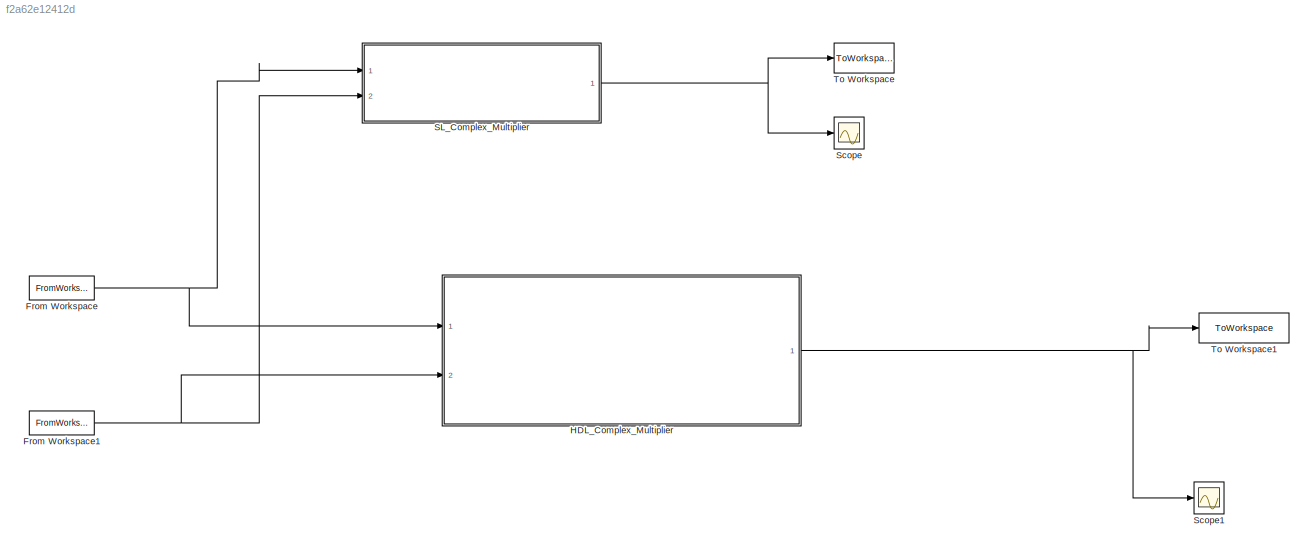
MODEL slx_f2a62e12412d
KIND model
CONFIG AbsTol = auto
CONFIG EnableMultiTasking = off
CONFIG FixedStep = auto
CONFIG MaxStep = auto
CONFIG MinStep = auto
CONFIG RelTol = 1e-3
CONFIG SampleTimeConstraint = Unconstrained
CONFIG SolverName = FixedStepDiscrete
CONFIG StartTime = 0.0
CONFIG StopTime = simulation_stop_time
BLOCK [FromWorkspace] From Workspace
  Interpolate = off
  OutputAfterFinalValue = Setting to zero
  SampleTime = sample_time
  VariableName = data1
BLOCK [FromWorkspace] From Workspace1
  Interpolate = off
  OutputAfterFinalValue = Setting to zero
  SampleTime = sample_time
  VariableName = data2
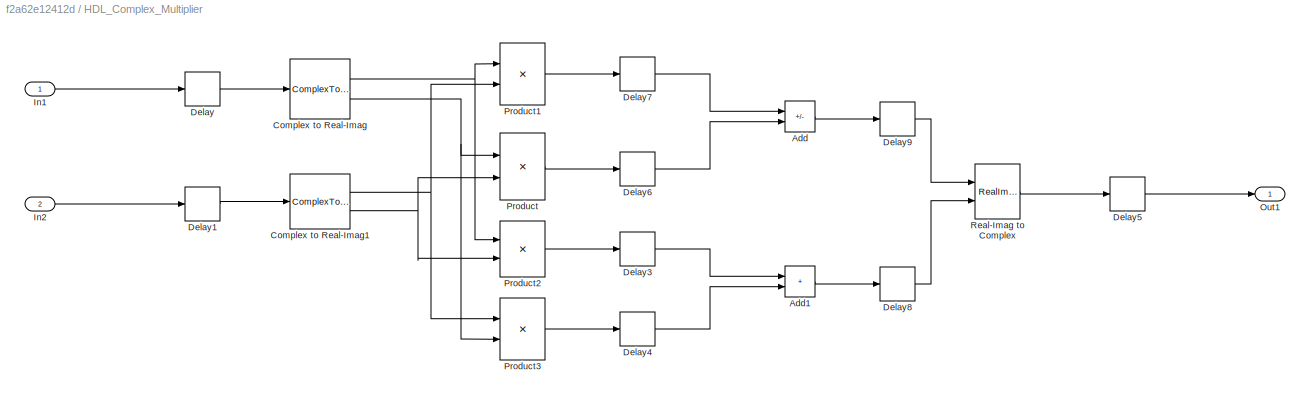
BLOCK [SubSystem] HDL_Complex_Multiplier
  Ports = [2, 1]
  RequestExecContextInheritance = off
BLOCK [Sum] HDL_Complex_Multiplier/Add
  IconShape = rectangular
  Inputs = +-
  Ports = [2, 1]
BLOCK [Sum] HDL_Complex_Multiplier/Add1
  IconShape = rectangular
  Ports = [2, 1]
BLOCK [ComplexToRealImag] HDL_Complex_Multiplier/Complex to Real-Imag
  Ports = [1, 2]
BLOCK [ComplexToRealImag] HDL_Complex_Multiplier/Complex to Real-Imag1
  Ports = [1, 2]
BLOCK [Delay] HDL_Complex_Multiplier/Delay
  DelayLength = 1
  InitialCondition = 0
  InputPortMap = u0
  Ports = [1, 1]
BLOCK [Delay] HDL_Complex_Multiplier/Delay1
  DelayLength = 1
  InitialCondition = 0
  InputPortMap = u0
  Ports = [1, 1]
BLOCK [Delay] HDL_Complex_Multiplier/Delay3
  DelayLength = 1
  InitialCondition = 0
  InputPortMap = u0
  Ports = [1, 1]
BLOCK [Delay] HDL_Complex_Multiplier/Delay4
  DelayLength = 1
  InitialCondition = 0
  InputPortMap = u0
  Ports = [1, 1]
BLOCK [Delay] HDL_Complex_Multiplier/Delay5
  DelayLength = 1
  InitialCondition = 0
  InputPortMap = u0
  Ports = [1, 1]
BLOCK [Delay] HDL_Complex_Multiplier/Delay6
  DelayLength = 1
  InitialCondition = 0
  InputPortMap = u0
  Ports = [1, 1]
BLOCK [Delay] HDL_Complex_Multiplier/Delay7
  DelayLength = 1
  InitialCondition = 0
  InputPortMap = u0
  Ports = [1, 1]
BLOCK [Delay] HDL_Complex_Multiplier/Delay8
  DelayLength = 1
  InitialCondition = 0
  InputPortMap = u0
  Ports = [1, 1]
BLOCK [Delay] HDL_Complex_Multiplier/Delay9
  DelayLength = 1
  InitialCondition = 0
  InputPortMap = u0
  Ports = [1, 1]
BLOCK [Inport] HDL_Complex_Multiplier/In1
BLOCK [Inport] HDL_Complex_Multiplier/In2
  Port = 2
BLOCK [Outport] HDL_Complex_Multiplier/Out1
BLOCK [Product] HDL_Complex_Multiplier/Product
  Ports = [2, 1]
BLOCK [Product] HDL_Complex_Multiplier/Product1
  Ports = [2, 1]
BLOCK [Product] HDL_Complex_Multiplier/Product2
  Ports = [2, 1]
BLOCK [Product] HDL_Complex_Multiplier/Product3
  Ports = [2, 1]
BLOCK [RealImagToComplex] HDL_Complex_Multiplier/Real-Imag to Complex
  Ports = [2, 1]
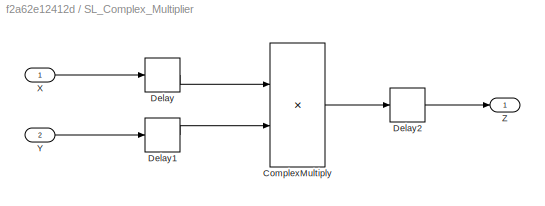
BLOCK [SubSystem] SL_Complex_Multiplier
  Ports = [2, 1]
  RequestExecContextInheritance = off
BLOCK [Product] SL_Complex_Multiplier/ComplexMultiply
  Ports = [2, 1]
BLOCK [Delay] SL_Complex_Multiplier/Delay
  DelayLength = 1
  InitialCondition = 0
  InputPortMap = u0
  Ports = [1, 1]
BLOCK [Delay] SL_Complex_Multiplier/Delay1
  DelayLength = 1
  InitialCondition = 0
  InputPortMap = u0
  Ports = [1, 1]
BLOCK [Delay] SL_Complex_Multiplier/Delay2
  DelayLength = 3
  InitialCondition = 0
  InputPortMap = u0
  Ports = [1, 1]
BLOCK [Inport] SL_Complex_Multiplier/X
BLOCK [Inport] SL_Complex_Multiplier/Y
  Port = 2
BLOCK [Outport] SL_Complex_Multiplier/Z
  VectorParamsAs1DForOutWhenUnconnected = off
BLOCK [Scope] Scope
  Floating = off
  NumInputPorts = 1
  Ports = [1]
  ScopeSpecificationString = Simulink.scopes.TimeScopeBlockCfg('CurrentConfiguration', extmgr.ConfigurationSet(extmgr.Configuration('Core','General UI',true),extmgr.Configuration('Core','Source UI',true),extmgr.Configuration('Sources','WiredSimulink',true),extmgr.Configuration('Visuals','Time Domain',true,'SerializedDisplays',{struct('MinYLimReal','-0.72914','MaxYLimReal','1.18992','YLabelReal','','MinYLimMag','0.00000','MaxY...<+1524ch>
BLOCK [Scope] Scope1
  Floating = off
  NumInputPorts = 1
  Ports = [1]
  ScopeSpecificationString = Simulink.scopes.TimeScopeBlockCfg('CurrentConfiguration', extmgr.ConfigurationSet(extmgr.Configuration('Core','General UI',true),extmgr.Configuration('Core','Source UI',true),extmgr.Configuration('Sources','WiredSimulink',true,'DataLoggingVariableName','ScopeData1'),extmgr.Configuration('Visuals','Time Domain',true,'SerializedDisplays',{struct('MinYLimReal','-0.81505','MaxYLimReal','1.32108','YLab...<+1447ch>
BLOCK [ToWorkspace] To Workspace
  FixptAsFi = on
  MaxDataPoints = inf
  Ports = [1]
  SampleTime = -1
  SaveFormat = Structure With Time
  VariableName = sw_out
BLOCK [ToWorkspace] To Workspace1
  FixptAsFi = on
  MaxDataPoints = inf
  Ports = [1]
  SampleTime = -1
  SaveFormat = Structure With Time
  VariableName = hw_out
NET From Workspace1:1 -> HDL_Complex_Multiplier:2, SL_Complex_Multiplier:2
NET From Workspace:1 -> HDL_Complex_Multiplier:1, SL_Complex_Multiplier:1
LINE HDL_Complex_Multiplier/Add1:1 -> HDL_Complex_Multiplier/Delay8:1
LINE HDL_Complex_Multiplier/Add:1 -> HDL_Complex_Multiplier/Delay9:1
NET HDL_Complex_Multiplier/Complex to Real-Imag1:1 -> HDL_Complex_Multiplier/Product1:2, HDL_Complex_Multiplier/Product3:1
NET HDL_Complex_Multiplier/Complex to Real-Imag1:2 -> HDL_Complex_Multiplier/Product2:2, HDL_Complex_Multiplier/Product:2
NET HDL_Complex_Multiplier/Complex to Real-Imag:1 -> HDL_Complex_Multiplier/Product1:1, HDL_Complex_Multiplier/Product2:1
NET HDL_Complex_Multiplier/Complex to Real-Imag:2 -> HDL_Complex_Multiplier/Product3:2, HDL_Complex_Multiplier/Product:1
LINE HDL_Complex_Multiplier/Delay1:1 -> HDL_Complex_Multiplier/Complex to Real-Imag1:1
LINE HDL_Complex_Multiplier/Delay3:1 -> HDL_Complex_Multiplier/Add1:1
LINE HDL_Complex_Multiplier/Delay4:1 -> HDL_Complex_Multiplier/Add1:2
LINE HDL_Complex_Multiplier/Delay5:1 -> HDL_Complex_Multiplier/Out1:1
LINE HDL_Complex_Multiplier/Delay6:1 -> HDL_Complex_Multiplier/Add:2
LINE HDL_Complex_Multiplier/Delay7:1 -> HDL_Complex_Multiplier/Add:1
LINE HDL_Complex_Multiplier/Delay8:1 -> HDL_Complex_Multiplier/Real-Imag to Complex:2
LINE HDL_Complex_Multiplier/Delay9:1 -> HDL_Complex_Multiplier/Real-Imag to Complex:1
LINE HDL_Complex_Multiplier/Delay:1 -> HDL_Complex_Multiplier/Complex to Real-Imag:1
LINE HDL_Complex_Multiplier/In1:1 -> HDL_Complex_Multiplier/Delay:1
LINE HDL_Complex_Multiplier/In2:1 -> HDL_Complex_Multiplier/Delay1:1
LINE HDL_Complex_Multiplier/Product1:1 -> HDL_Complex_Multiplier/Delay7:1
LINE HDL_Complex_Multiplier/Product2:1 -> HDL_Complex_Multiplier/Delay3:1
LINE HDL_Complex_Multiplier/Product3:1 -> HDL_Complex_Multiplier/Delay4:1
LINE HDL_Complex_Multiplier/Product:1 -> HDL_Complex_Multiplier/Delay6:1
LINE HDL_Complex_Multiplier/Real-Imag to Complex:1 -> HDL_Complex_Multiplier/Delay5:1
NET HDL_Complex_Multiplier:1 -> Scope1:1, To Workspace1:1
LINE SL_Complex_Multiplier/ComplexMultiply:1 -> SL_Complex_Multiplier/Delay2:1
LINE SL_Complex_Multiplier/Delay1:1 -> SL_Complex_Multiplier/ComplexMultiply:2
LINE SL_Complex_Multiplier/Delay2:1 -> SL_Complex_Multiplier/Z:1
LINE SL_Complex_Multiplier/Delay:1 -> SL_Complex_Multiplier/ComplexMultiply:1
LINE SL_Complex_Multiplier/X:1 -> SL_Complex_Multiplier/Delay:1
LINE SL_Complex_Multiplier/Y:1 -> SL_Complex_Multiplier/Delay1:1
NET SL_Complex_Multiplier:1 -> Scope:1, To Workspace:1
note: NET lines group one-source signal fan-out (src -> all destinations, sorted); 1:1 wires keep LINE
